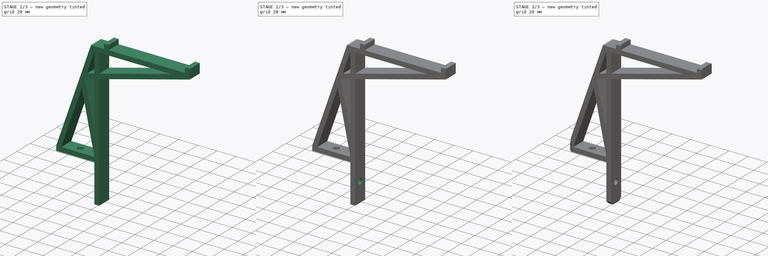
[diagram: build sequence overview — one tinted view per stage of 3, left to right]
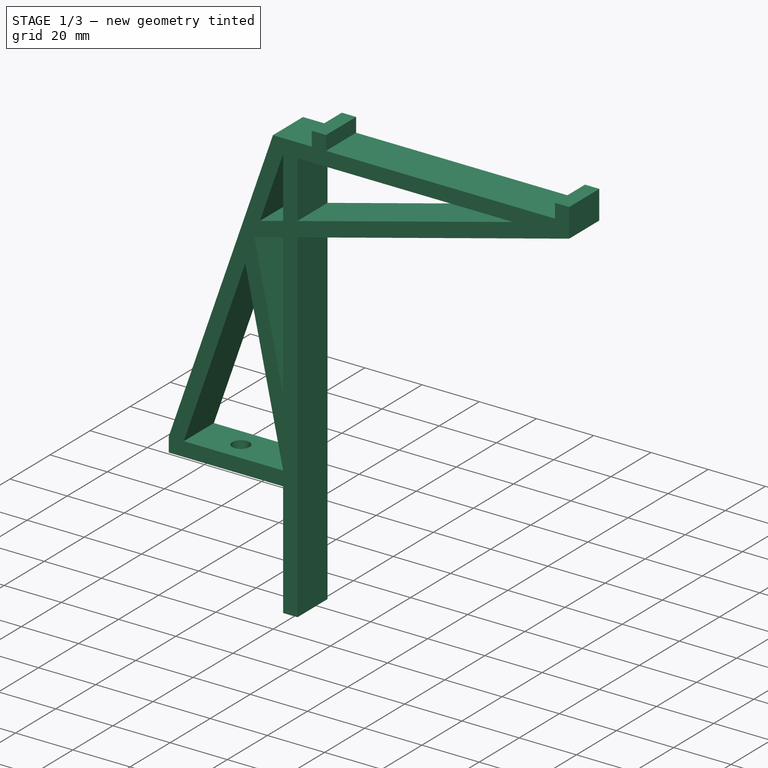
[diagram: stage 1 of 3 — iso view after this stage's code; geometry added in this stage tinted green]
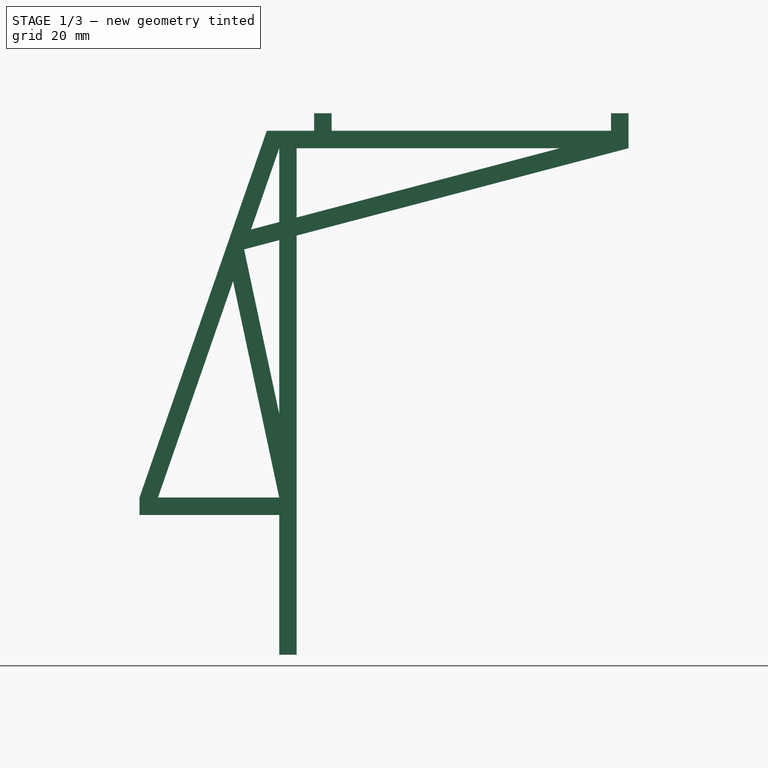
[diagram: stage 1 of 3 — front view after this stage's code; geometry added in this stage tinted green]
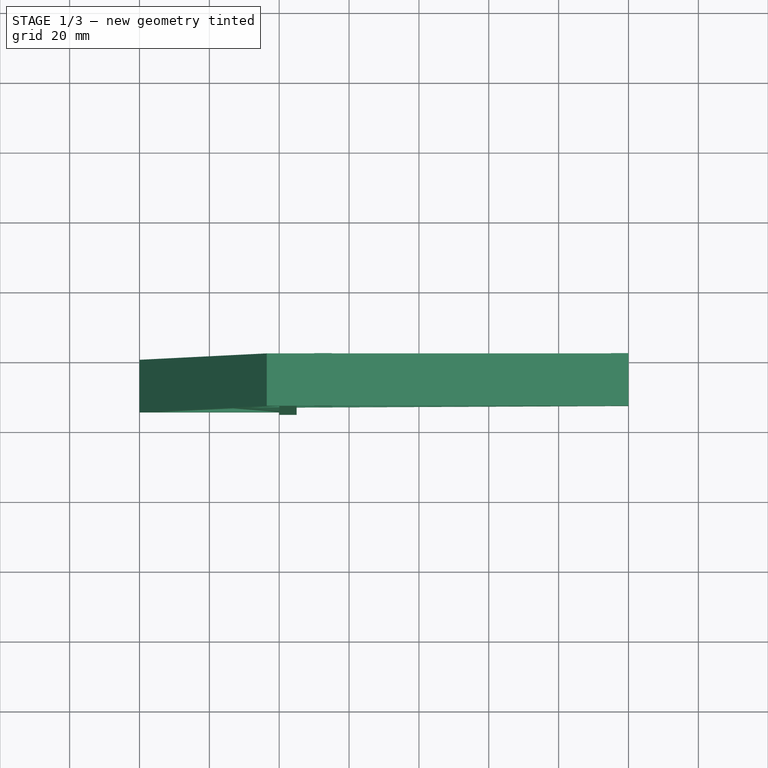
[diagram: stage 1 of 3 — top view after this stage's code; geometry added in this stage tinted green]
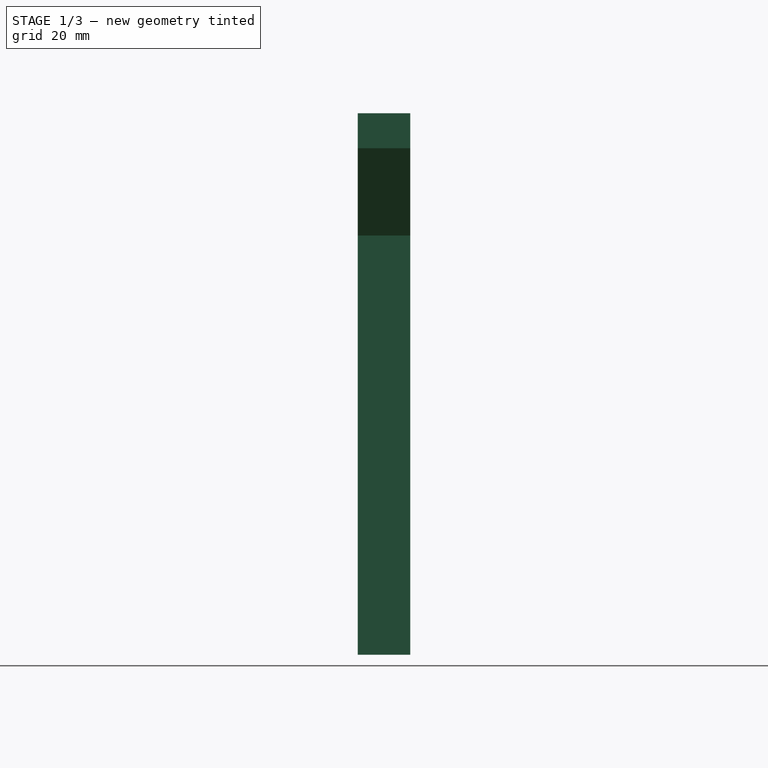
[diagram: stage 1 of 3 — right view after this stage's code; geometry added in this stage tinted green]
FCSTD DOCUMENT  (FreeCAD 0.18R14555 (Git shallow))
Label: filament-holder
License: All rights reserved
LicenseURL: http://en.wikipedia.org/wiki/All_rights_reserved
objects: Sketcher::SketchObject×3, PartDesign::Pocket×2, PartDesign::Chamfer×2, PartDesign::Pad×1, PartDesign::Body×1
note: 12 computed .brp shape members not serialized (recipe doc carries the construction recipe); baked Part::Feature solids carry a one-line shape summary decoded from their .brp

FEATURE [Sketcher::SketchObject] Sketch
  MapMode = 5
  Placement = pos=(0,0,0) rot=(1,0,0;1.5708rad)
  Support = -> [XZ_Plane]
  sketch-geometry (45):
    g0: LineSegment StartX=40 StartY=0 StartZ=0 EndX=40 EndY=40 EndZ=0
    g1: LineSegment StartX=40 StartY=40 StartZ=0 EndX=0 EndY=40 EndZ=0
    g2: LineSegment StartX=0 StartY=40 StartZ=0 EndX=0 EndY=45 EndZ=0
    g3: LineSegment StartX=0 StartY=45 StartZ=0 EndX=36.4428 EndY=150 EndZ=0
    g4: LineSegment StartX=36.4428 StartY=150 StartZ=0 EndX=50 EndY=150 EndZ=0
    g5: LineSegment StartX=50 StartY=150 StartZ=0 EndX=50 EndY=155 EndZ=0
    g6: LineSegment StartX=50 StartY=155 StartZ=0 EndX=55 EndY=155 EndZ=0
    g7: LineSegment StartX=55 StartY=155 StartZ=0 EndX=55 EndY=150 EndZ=0
    g8: LineSegment StartX=55 StartY=150 StartZ=0 EndX=135 EndY=150 EndZ=0
    g9: LineSegment StartX=135 StartY=150 StartZ=0 EndX=135 EndY=155 EndZ=0
    g10: LineSegment StartX=135 StartY=155 StartZ=0 EndX=140 EndY=155 EndZ=0
    g11: LineSegment StartX=140 StartY=155 StartZ=0 EndX=140 EndY=145 EndZ=0
    g12: LineSegment StartX=140 StartY=145 StartZ=0 EndX=45 EndY=120 EndZ=0
    g13: LineSegment StartX=45 StartY=120 StartZ=0 EndX=45 EndY=0 EndZ=0
    g14: LineSegment StartX=45 StartY=0 StartZ=0 EndX=40 EndY=0 EndZ=0
    g15: LineSegment StartX=45 StartY=145 StartZ=0 EndX=45 EndY=125.17 EndZ=0
    g16: LineSegment StartX=45 StartY=125.17 StartZ=0 EndX=120.353 EndY=145 EndZ=0
    g17: LineSegment StartX=120.353 StartY=145 StartZ=0 EndX=45 EndY=145 EndZ=0
    g18: LineSegment StartX=40 StartY=45 StartZ=0 EndX=26.7828 EndY=106.918 EndZ=0
    g19: LineSegment StartX=26.7828 StartY=106.918 StartZ=0 EndX=5.29259 EndY=45 EndZ=0
    g20: LineSegment StartX=5.29259 StartY=45 StartZ=0 EndX=40 EndY=45 EndZ=0
    g21: LineSegment StartX=40 StartY=68.9509 StartZ=0 EndX=29.9484 EndY=116.039 EndZ=0
    g22: LineSegment StartX=29.9484 StartY=116.039 StartZ=0 EndX=40 EndY=118.684 EndZ=0
    g23: LineSegment StartX=40 StartY=118.684 StartZ=0 EndX=40 EndY=68.9509 EndZ=0
    g24: LineSegment StartX=40 StartY=123.854 StartZ=0 EndX=31.9232 EndY=121.729 EndZ=0
    g25: LineSegment StartX=31.9232 StartY=121.729 StartZ=0 EndX=40 EndY=145 EndZ=0
    g26: LineSegment StartX=40 StartY=145 StartZ=0 EndX=40 EndY=123.854 EndZ=0
    g27: LineSegment [constr] StartX=40 StartY=40 StartZ=0 EndX=40 EndY=45 EndZ=0
    g28: LineSegment [constr] StartX=5.29259 StartY=45 StartZ=0 EndX=0 EndY=45 EndZ=0
    g29: LineSegment [constr] StartX=26.7828 StartY=106.918 StartZ=0 EndX=29.9484 EndY=116.039 EndZ=0
    g30: LineSegment [constr] StartX=29.9484 StartY=116.039 StartZ=0 EndX=31.9232 EndY=121.729 EndZ=0
    g31: LineSegment [constr] StartX=40 StartY=118.684 StartZ=0 EndX=40 EndY=123.854 EndZ=0
    g32: LineSegment [constr] StartX=40 StartY=45 StartZ=0 EndX=40 EndY=68.9509 EndZ=0
    g33: LineSegment [constr] StartX=45 StartY=120 StartZ=0 EndX=45 EndY=125.17 EndZ=0
    g34: LineSegment [constr] StartX=50 StartY=150 StartZ=0 EndX=55 EndY=150 EndZ=0
    g35: LineSegment [constr] StartX=55 StartY=155 StartZ=0 EndX=135 EndY=155 EndZ=0
    g36: LineSegment [constr] StartX=40 StartY=145 StartZ=0 EndX=45 EndY=145 EndZ=0
    g37: LineSegment [constr] StartX=120.353 StartY=145 StartZ=0 EndX=140 EndY=145 EndZ=0
    g38: LineSegment [constr] StartX=40 StartY=123.854 StartZ=0 EndX=45 EndY=125.17 EndZ=0
    g39: LineSegment [constr] StartX=40 StartY=118.684 StartZ=0 EndX=45 EndY=120 EndZ=0
    g40: LineSegment [constr] StartX=5.29259 StartY=45 StartZ=0 EndX=0.569005 EndY=46.6394 EndZ=0
    g41: LineSegment [constr] StartX=40 StartY=68.9509 StartZ=0 EndX=35.1102 EndY=67.9071 EndZ=0
    g42: LineSegment [constr] StartX=120.353 StartY=145 StartZ=0 EndX=121.626 EndY=140.165 EndZ=0
    g43: LineSegment [constr] StartX=40 StartY=0 StartZ=0 EndX=0 EndY=0 EndZ=0
    g44: LineSegment [constr] StartX=0 StartY=0 StartZ=0 EndX=0 EndY=40 EndZ=0
  constraints (119):
    c: Vertical(g0)
    c: Coincident(g0,g1)
    c: Horizontal(g1)
    c: Coincident(g1,g2)
    c: Vertical(g2)
    c: Coincident(g2,g3)
    c: Coincident(g3,g4)
    c: Horizontal(g4)
    c: Coincident(g4,g5)
    c: Coincident(g5,g6)
    c: Coincident(g6,g7)
    c: Vertical(g7)
    c: Coincident(g7,g8)
    c: Horizontal(g8)
    c: Coincident(g8,g9)
    c: Vertical(g9)
    c: Coincident(g9,g10)
    c: Horizontal(g10)
    c: Coincident(g10,g11)
    c: Vertical(g11)
    c: Coincident(g11,g12)
    c: Coincident(g12,g13)
    c: Vertical(g13)
    c: Coincident(g13,g14)
    c: Coincident(g14,g0)
    c: Vertical(g15)
    c: Coincident(g15,g16)
    c: Coincident(g16,g17)
    c: Coincident(g17,g15)
    c: Horizontal(g17)
    c: Coincident(g18,g19)
    c: Coincident(g19,g20)
    c: Coincident(g20,g18)
    c: Horizontal(g20)
    c: Coincident(g21,g22)
    c: Coincident(g22,g23)
    c: Coincident(g23,g21)
    c: Vertical(g23)
    c: Coincident(g24,g25)
    c: Coincident(g25,g26)
    c: Coincident(g26,g24)
    c: Coincident(g27,g0)
    c: Coincident(g27,g18)
    c: Vertical(g27)
    c: Coincident(g28,g19)
    c: Coincident(g28,g2)
    c: Horizontal(g28)
    c: Coincident(g29,g18)
    c: Coincident(g29,g21)
    c: Coincident(g30,g21)
    c: Coincident(g30,g24)
    c: Parallel(g19,g29)
    c: Parallel(g30,g29)
    c: Parallel(g25,g30)
    c: Vertical(g26)
    c: Coincident(g31,g22)
    c: Coincident(g31,g24)
    c: Coincident(g32,g18)
    c: Coincident(g32,g21)
    c: Vertical(g32)
    c: Vertical(g31)
    c: Coincident(g33,g12)
    c: Coincident(g33,g15)
    c: Vertical(g33)
    c: Vertical(g5)
    c: Horizontal(g6)
    c: Equal(g6,g10)
    c: Coincident(g34,g4)
    c: Coincident(g34,g7)
    c: Coincident(g35,g6)
    c: Coincident(g35,g9)
    c: Horizontal(g35)
    c: Horizontal(g34)
    c: Coincident(g36,g25)
    c: Coincident(g36,g15)
    c: Horizontal(g36)
    c: Coincident(g37,g16)
    c: Coincident(g37,g11)
    c: Horizontal(g37)
    c: Parallel(g3,g19)
    c: Parallel(g22,g24)
    c: Parallel(g21,g18)
    c: Coincident(g38,g24)
    c: Coincident(g38,g15)
    c: Coincident(g39,g22)
    c: Coincident(g39,g12)
    c: Parallel(g38,g39)
    c: Parallel(g24,g38)
    c: Parallel(g16,g38)
    c: Parallel(g12,g39)
    c: DistanceX(g14,g14) = 5
    c: DistanceY(g1,g19) = 5
    c: Coincident(g40,g19)
    c: Perpendicular(g40,g3) = 4.71239
    c: Distance(g40) = 5
    c: Coincident(g41,g21)
    c: PointOnObject(g41,g18)
    c: Perpendicular(g41,g18)
    c: Distance(g41) = 5
    c: DistanceY(g0,g0) = 40
    c: DistanceX(g1,g1) = 40
    c: DistanceY(g9,g9) = 5
    c: DistanceX(g6,g6) = 5
    c: DistanceX(g7,g8) = 80
    c: DistanceY(g11,g8) = 5
    c: DistanceY(g12,g11) = 25
    c: Coincident(g42,g16)
    c: PointOnObject(g42,g12)
    c: Perpendicular(g12,g42)
    c: Distance(g42) = 5
    c: DistanceX(g15,g4) = 5
    c: Horizontal(g14)
    c: DistanceY(g13,g8) = 150
    c: Coincident(g43,g0)
    c: Horizontal(g43)
    c: Coincident(g44,g43)
    c: Coincident(g44,g1)
    c: Vertical(g44)
    c: Coincident(g43,g-1)
FEATURE [PartDesign::Pad] Pad
  Length = 15
  Length2 = 100
  Placement = pos=(0,0,0) rot=(1,0,0;1.5708rad)
  Profile = -> Sketch
  Type = 0
FEATURE [Sketcher::SketchObject] Sketch001
  ExternalGeometry = -> [Pad]
  MapMode = 5
  Placement = pos=(0,-8.9e-15,40) rot=(1,0,0;3.14159rad)
  Support = -> [Pad]
  sketch-geometry (3):
    g0: LineSegment [constr] StartX=40 StartY=0 StartZ=0 EndX=0 EndY=15 EndZ=0
    g1: LineSegment [constr] StartX=0 StartY=0 StartZ=0 EndX=40 EndY=15 EndZ=0
    g2: Circle CenterX=20 CenterY=7.5 CenterZ=0 NormalX=0 NormalY=0 NormalZ=1 AngleXU=0 Radius=3
  constraints (8):
    c: Coincident(g0,g-4)
    c: Coincident(g0,g-3)
    c: Coincident(g1,g-1)
    c: Coincident(g1,g-3)
    c: PointOnObject(g2,g0)
    c: PointOnObject(g2,g1)
    c: Radius(g2) = 3
    c: DistanceX(g-3,g-3) = 40
FEATURE [PartDesign::Pocket] Pocket
  BaseFeature = -> Pad
  Length = 5
  Length2 = 100
  Placement = pos=(0,0,0) rot=(1,0,0;1.5708rad)
  Profile = -> Sketch001
  Type = 2
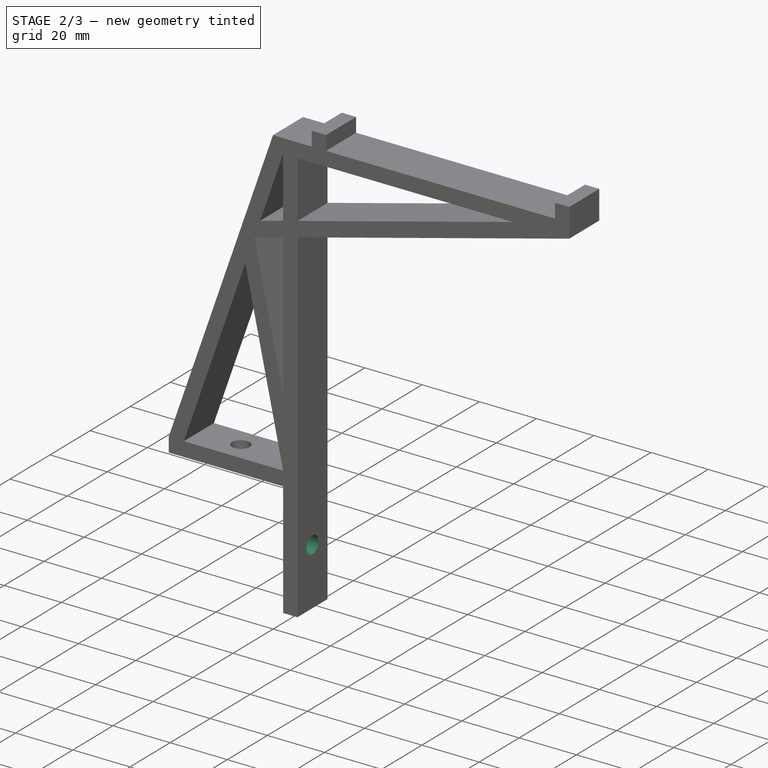
[diagram: stage 2 of 3 — iso view after this stage's code; geometry added in this stage tinted green]
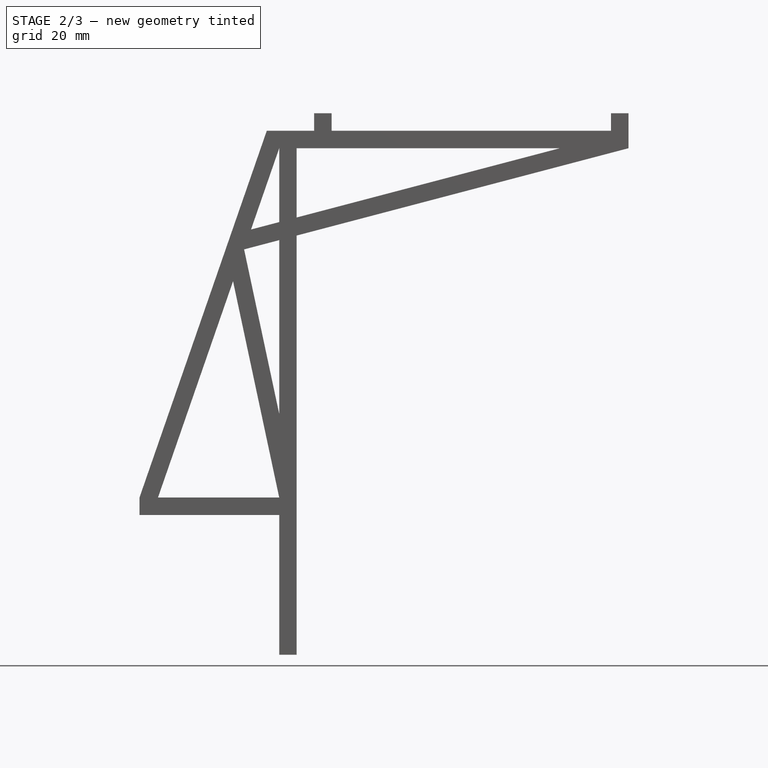
[diagram: stage 2 of 3 — front view after this stage's code; geometry added in this stage tinted green]
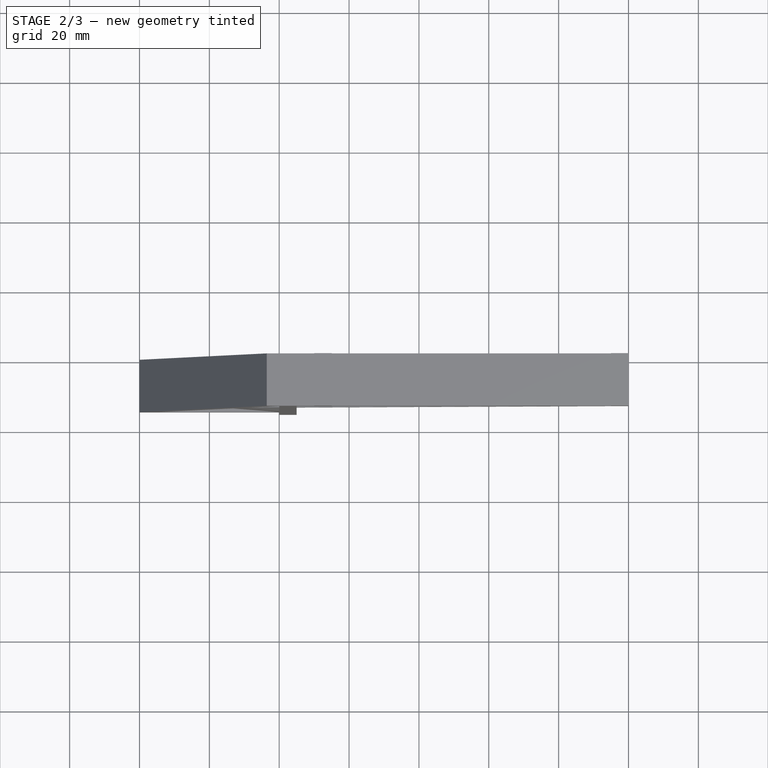
[diagram: stage 2 of 3 — top view after this stage's code; geometry added in this stage tinted green]
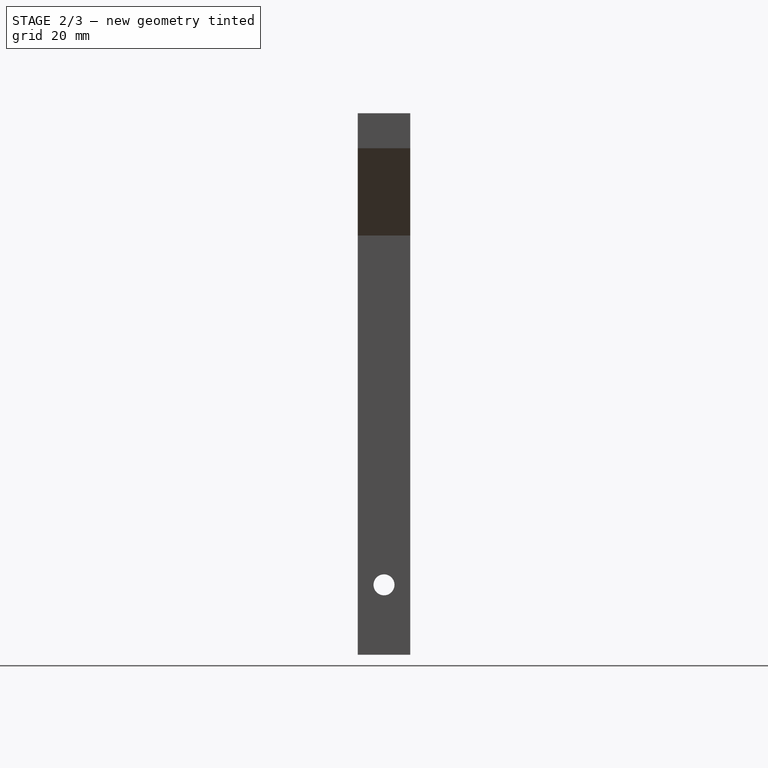
[diagram: stage 2 of 3 — right view after this stage's code; geometry added in this stage tinted green]
FEATURE [Sketcher::SketchObject] Sketch002
  ExternalGeometry = -> [Pocket]
  MapMode = 5
  Placement = pos=(40,0,0) rot=(0.707107,0,-0.707107;3.14159rad)
  Support = -> [Pocket]
  sketch-geometry (3):
    g0: LineSegment [constr] StartX=-40 StartY=15 StartZ=0 EndX=0 EndY=0 EndZ=0
    g1: LineSegment [constr] StartX=-40 StartY=0 StartZ=0 EndX=0 EndY=15 EndZ=0
    g2: Circle CenterX=-20 CenterY=7.5 CenterZ=0 NormalX=0 NormalY=0 NormalZ=1 AngleXU=0 Radius=3
  constraints (8):
    c: Coincident(g0,g-3)
    c: Coincident(g0,g-1)
    c: Coincident(g1,g-4)
    c: Coincident(g1,g-3)
    c: PointOnObject(g2,g0)
    c: PointOnObject(g2,g1)
    c: Radius(g2) = 3
    c: DistanceX(g-3,g-3) = 40
FEATURE [PartDesign::Pocket] Pocket001
  BaseFeature = -> Pocket
  Length = 5
  Length2 = 100
  Placement = pos=(0,0,0) rot=(1,0,0;1.5708rad)
  Profile = -> Sketch002
  Type = 2
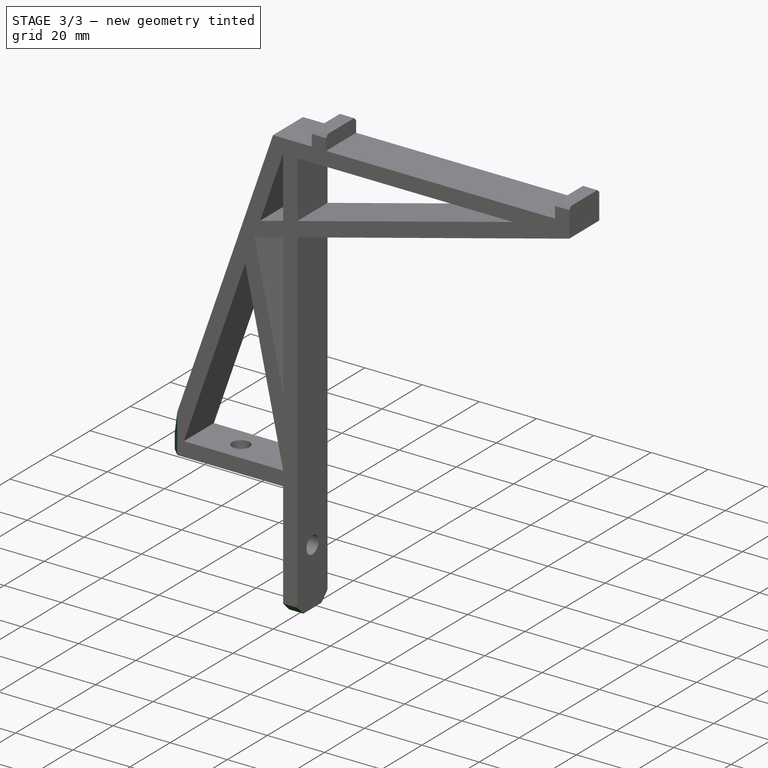
[diagram: stage 3 of 3 — iso view after this stage's code; geometry added in this stage tinted green]
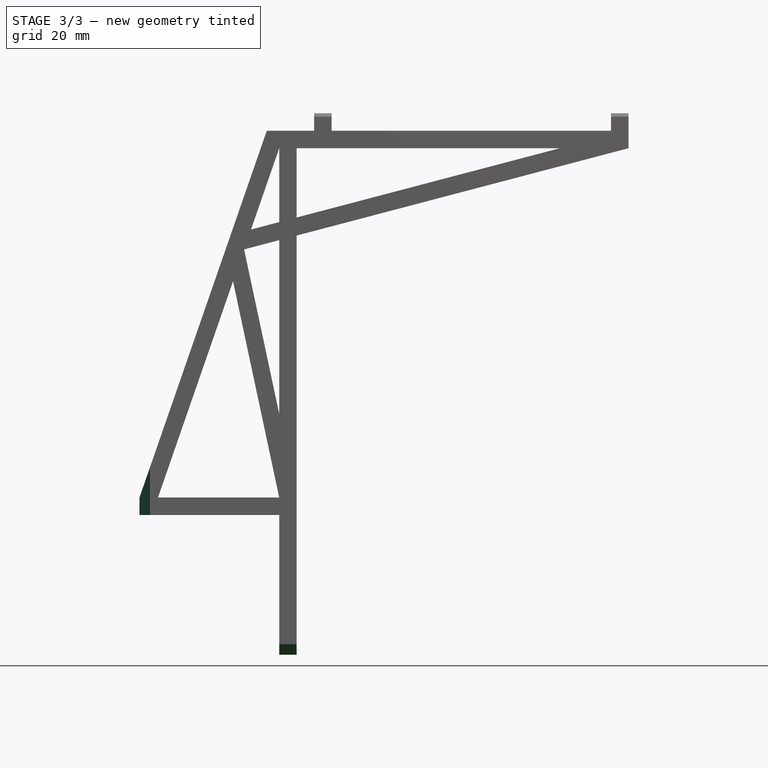
[diagram: stage 3 of 3 — front view after this stage's code; geometry added in this stage tinted green]
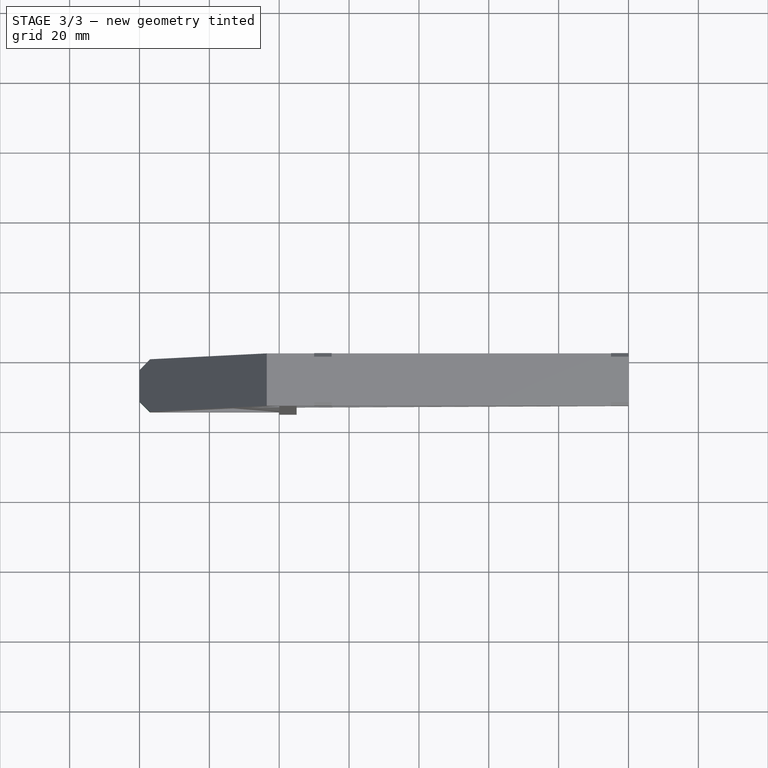
[diagram: stage 3 of 3 — top view after this stage's code; geometry added in this stage tinted green]
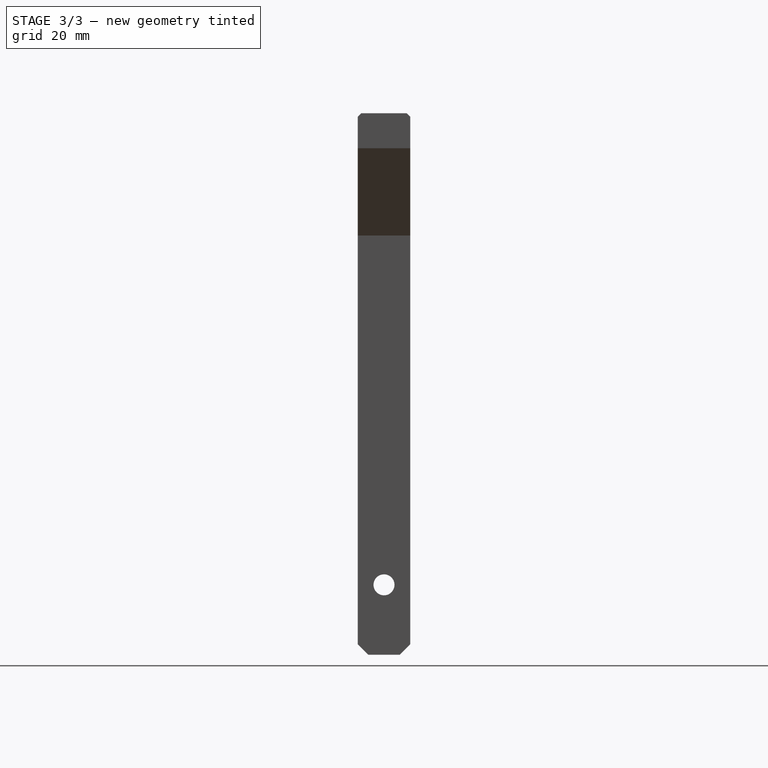
[diagram: stage 3 of 3 — right view after this stage's code; geometry added in this stage tinted green]
FEATURE [PartDesign::Chamfer] Chamfer
  Base = -> Pocket001 [Edge43,Edge18,Edge39,Edge14]
  BaseFeature = -> Pocket001
  Placement = pos=(0,0,0) rot=(1,0,0;1.5708rad)
  Size = 1
FEATURE [PartDesign::Chamfer] Chamfer001
  Base = -> Chamfer [Edge64,Edge13,Edge46,Edge7]
  BaseFeature = -> Chamfer
  Placement = pos=(0,0,0) rot=(1,0,0;1.5708rad)
  Size = 3
FEATURE [PartDesign::Body] Body
  Group = -> [Sketch,Pad,Sketch001,Pocket,Sketch002,Pocket001,Chamfer,Chamfer001]
  Origin = -> Origin
  Tip = -> Chamfer001
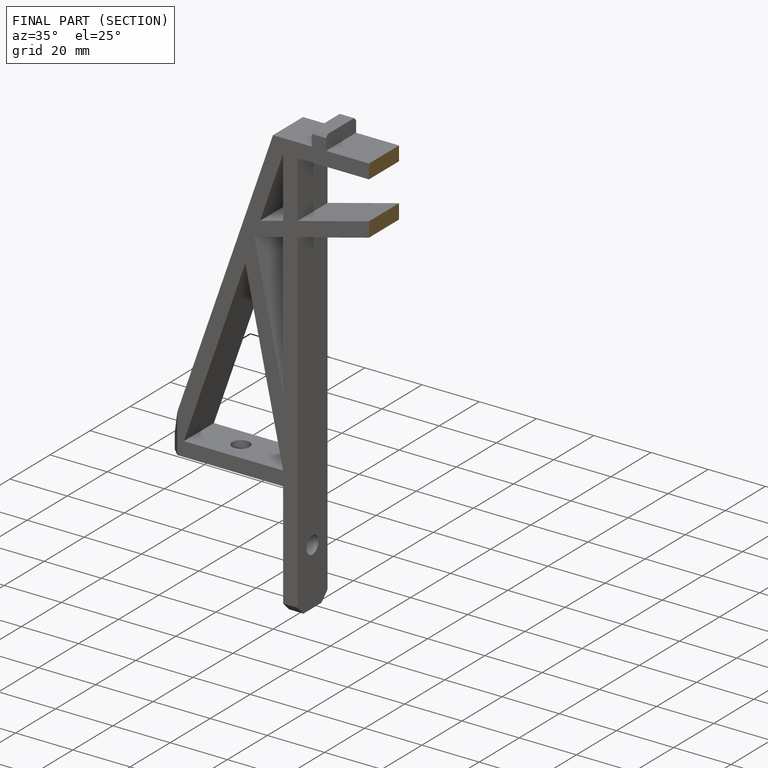
[diagram: finished part — half-section view (interior)]
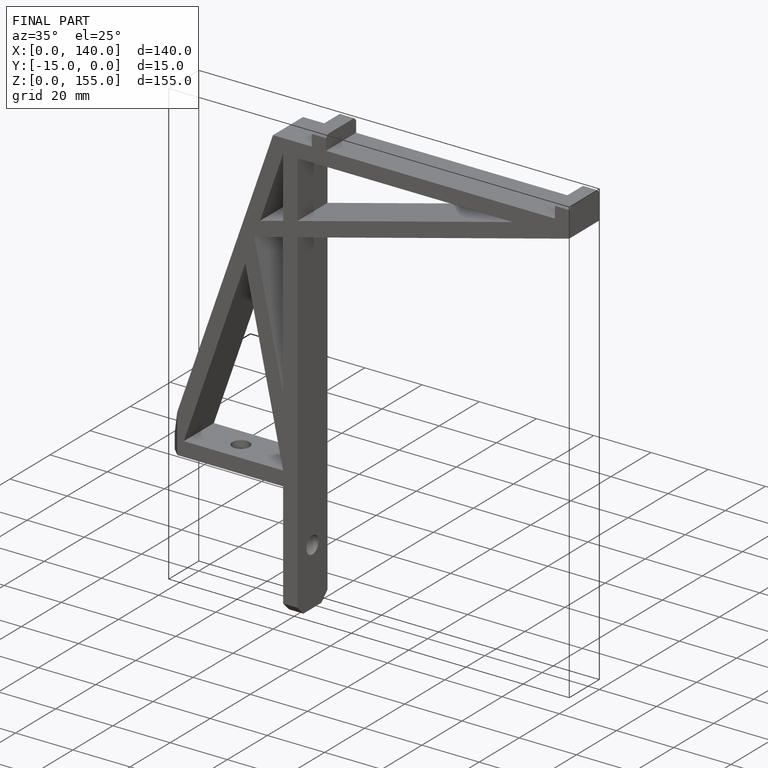
[diagram: finished part — iso view with bounding-box wireframe]
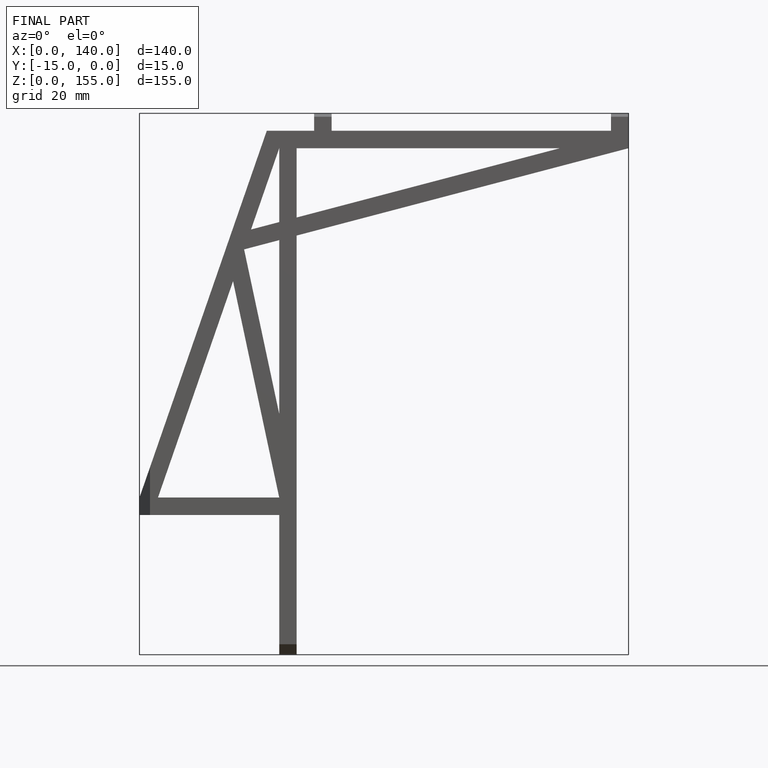
[diagram: finished part — front view with bounding-box wireframe]
